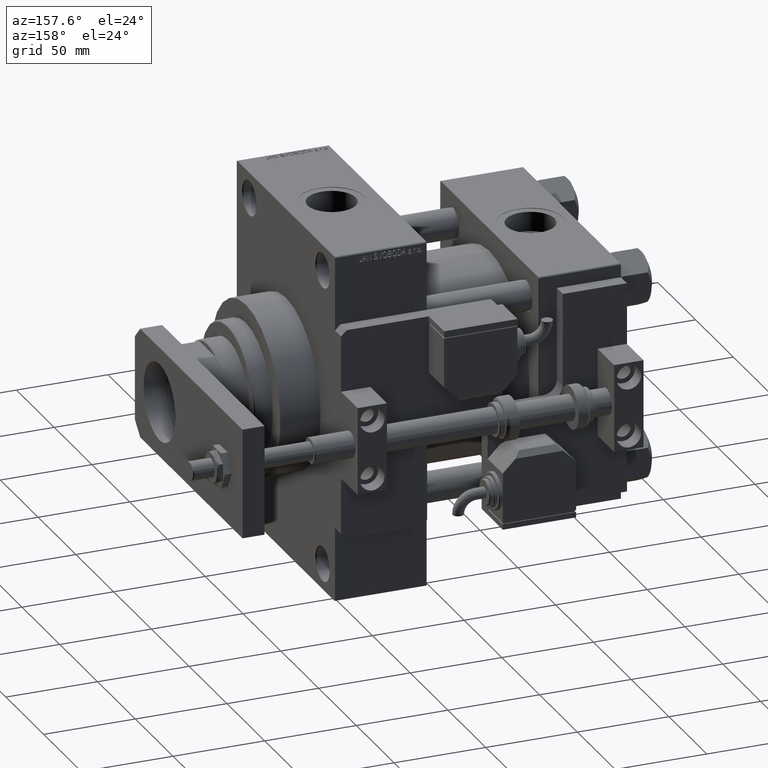
[diagram: clean part render]
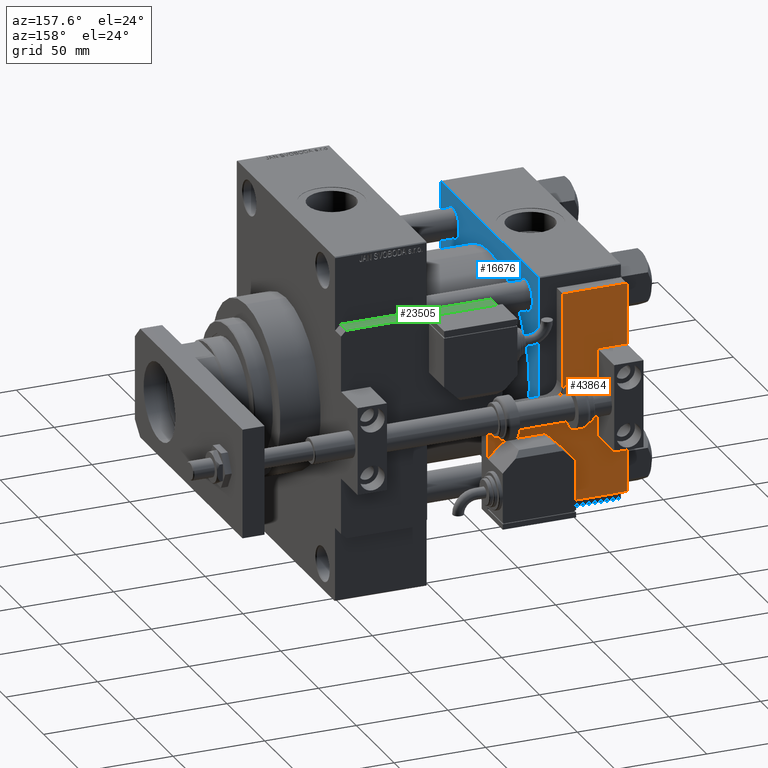
[diagram: same view with three faces highlighted in distinct colors, each labeled with its STEP entity id]
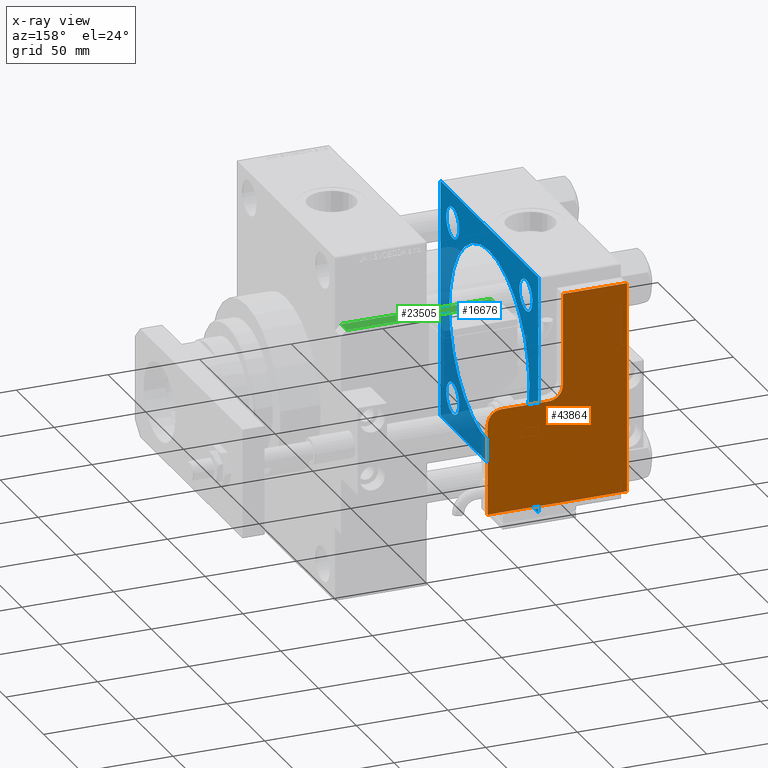
[diagram: x-ray of the same camera — body ghosted, the three highlighted faces saturated]
A machine part, auxiliary view with three faces highlighted in distinct colors.
The next image is the same camera in x-ray (body ghosted, the three faces saturated) — at least one of them is partly hidden behind the body in this view.
Their STEP definitions:

[orange] entity #43864 — the highlighted planar face has unit normal (0, 1, 0).
#50 = CARTESIAN_POINT ( 'NONE',  ( -34.99999999999997868, 57.00000000000009237, 8.000000000000000000 ) ) ;
#211 = DIRECTION ( 'NONE',  ( 2.434699615406041273E-16, -1.000000000000000000, 0.000000000000000000 ) ) ;
#1278 = FACE_OUTER_BOUND ( 'NONE', #4739, .T. ) ;
#1470 = EDGE_CURVE ( 'NONE', #4074, #8089, #20482, .T. ) ;
#2080 = PLANE ( 'NONE',  #2393 ) ;
#2393 = AXIS2_PLACEMENT_3D ( 'NONE', #22085, #5053, #17472 ) ;
#2793 = EDGE_CURVE ( 'NONE', #8494, #15554, #15912, .T. ) ;
#4074 = VERTEX_POINT ( 'NONE', #24729 ) ;
#4739 = EDGE_LOOP ( 'NONE', ( #21952, #33180, #37779, #35364, #12543, #35718, #17731, #25332 ) ) ;
#4872 = DIRECTION ( 'NONE',  ( 1.000000000000000000, 0.000000000000000000, 0.000000000000000000 ) ) ;
#5053 = DIRECTION ( 'NONE',  ( 0.000000000000000000, 0.000000000000000000, 1.000000000000000000 ) ) ;
#8069 = CARTESIAN_POINT ( 'NONE',  ( -76.00000000000005684, 57.00000000000008527, 8.000000000000000000 ) ) ;
#8089 = VERTEX_POINT ( 'NONE', #39453 ) ;
#8317 = CARTESIAN_POINT ( 'NONE',  ( 0.000000000000000000, 0.000000000000000000, 8.000000000000000000 ) ) ;
#8494 = VERTEX_POINT ( 'NONE', #35603 ) ;
#9310 = CARTESIAN_POINT ( 'NONE',  ( -68.50000000000005684, 57.00000000000008527, 8.000000000000000000 ) ) ;
#9888 = EDGE_CURVE ( 'NONE', #35508, #21602, #23882, .T. ) ;
#10003 = CARTESIAN_POINT ( 'NONE',  ( -76.00000000000004263, 0.000000000000000000, 8.000000000000000000 ) ) ;
#10797 = VECTOR ( 'NONE', #211, 1000.000000000000000 ) ;
#12145 = LINE ( 'NONE', #28628, #40667 ) ;
#12543 = ORIENTED_EDGE ( 'NONE', *, *, #27312, .T. ) ;
#12660 = CARTESIAN_POINT ( 'NONE',  ( -34.99999999999999289, 114.9999999999999716, 8.000000000000000000 ) ) ;
#15009 = CARTESIAN_POINT ( 'NONE',  ( 0.000000000000000000, 0.000000000000000000, 8.000000000000000000 ) ) ;
#15554 = VERTEX_POINT ( 'NONE', #12660 ) ;
#15912 = LINE ( 'NONE', #28340, #23796 ) ;
#17388 = EDGE_CURVE ( 'NONE', #8089, #39084, #47034, .T. ) ;
#17472 = DIRECTION ( 'NONE',  ( 1.000000000000000000, 0.000000000000000000, -0.000000000000000000 ) ) ;
#17731 = ORIENTED_EDGE ( 'NONE', *, *, #25837, .T. ) ;
#20471 = DIRECTION ( 'NONE',  ( 0.000000000000000000, 1.000000000000000000, 0.000000000000000000 ) ) ;
#20482 = LINE ( 'NONE', #8069, #10797 ) ;
#20600 = DIRECTION ( 'NONE',  ( -1.000000000000000000, -1.692413147294442765E-16, 0.000000000000000000 ) ) ;
#21602 = VERTEX_POINT ( 'NONE', #9310 ) ;
#21952 = ORIENTED_EDGE ( 'NONE', *, *, #9888, .T. ) ;
#22085 = CARTESIAN_POINT ( 'NONE',  ( 0.000000000000000000, 0.000000000000000000, 8.000000000000000000 ) ) ;
#23796 = VECTOR ( 'NONE', #27817, 1000.000000000000000 ) ;
#23882 = LINE ( 'NONE', #50, #36025 ) ;
#24729 = CARTESIAN_POINT ( 'NONE',  ( -76.00000000000005684, 49.50000000000008527, 8.000000000000000000 ) ) ;
#25332 = ORIENTED_EDGE ( 'NONE', *, *, #25698, .T. ) ;
#25409 = DIRECTION ( 'NONE',  ( 0.000000000000000000, 0.000000000000000000, 1.000000000000000000 ) ) ;
#25698 = EDGE_CURVE ( 'NONE', #48046, #35508, #31183, .T. ) ;
#25837 = EDGE_CURVE ( 'NONE', #15554, #48046, #12145, .T. ) ;
#26006 = AXIS2_PLACEMENT_3D ( 'NONE', #35190, #46542, #52468 ) ;
#26483 = DIRECTION ( 'NONE',  ( 1.000000000000000000, 0.000000000000000000, 0.000000000000000000 ) ) ;
#27312 = EDGE_CURVE ( 'NONE', #39084, #8494, #45342, .T. ) ;
#27817 = DIRECTION ( 'NONE',  ( -1.000000000000000000, -1.189524669241239460E-15, 0.000000000000000000 ) ) ;
#28340 = CARTESIAN_POINT ( 'NONE',  ( 0.000000000000000000, 115.0000000000000142, 8.000000000000000000 ) ) ;
#28628 = CARTESIAN_POINT ( 'NONE',  ( -34.99999999999999289, 114.9999999999999716, 8.000000000000000000 ) ) ;
#31183 = CIRCLE ( 'NONE', #26006, 7.500000000000000000 ) ;
#31962 = AXIS2_PLACEMENT_3D ( 'NONE', #34066, #25409, #4872 ) ;
#33180 = ORIENTED_EDGE ( 'NONE', *, *, #49761, .T. ) ;
#34066 = CARTESIAN_POINT ( 'NONE',  ( -68.50000000000005684, 49.50000000000008527, 8.000000000000000000 ) ) ;
#35190 = CARTESIAN_POINT ( 'NONE',  ( -42.49999999999997868, 64.50000000000008527, 8.000000000000000000 ) ) ;
#35364 = ORIENTED_EDGE ( 'NONE', *, *, #17388, .T. ) ;
#35508 = VERTEX_POINT ( 'NONE', #42621 ) ;
#35603 = CARTESIAN_POINT ( 'NONE',  ( 0.000000000000000000, 115.0000000000000142, 8.000000000000000000 ) ) ;
#35718 = ORIENTED_EDGE ( 'NONE', *, *, #2793, .T. ) ;
#36025 = VECTOR ( 'NONE', #20600, 1000.000000000000000 ) ;
#36384 = VECTOR ( 'NONE', #20471, 1000.000000000000000 ) ;
#37779 = ORIENTED_EDGE ( 'NONE', *, *, #1470, .T. ) ;
#39084 = VERTEX_POINT ( 'NONE', #15009 ) ;
#39453 = CARTESIAN_POINT ( 'NONE',  ( -76.00000000000004263, 0.000000000000000000, 8.000000000000000000 ) ) ;
#39801 = VECTOR ( 'NONE', #26483, 1000.000000000000000 ) ;
#40667 = VECTOR ( 'NONE', #45140, 1000.000000000000000 ) ;
#42094 = CARTESIAN_POINT ( 'NONE',  ( -34.99999999999997868, 64.50000000000008527, 8.000000000000000000 ) ) ;
#42621 = CARTESIAN_POINT ( 'NONE',  ( -42.49999999999997868, 57.00000000000009237, 8.000000000000000000 ) ) ;
#43864 = ADVANCED_FACE ( 'NONE', ( #1278 ), #2080, .T. ) ;
#44074 = CIRCLE ( 'NONE', #31962, 7.500000000000000000 ) ;
#45140 = DIRECTION ( 'NONE',  ( 2.392722035830083409E-16, -1.000000000000000000, 0.000000000000000000 ) ) ;
#45342 = LINE ( 'NONE', #8317, #36384 ) ;
#46542 = DIRECTION ( 'NONE',  ( -0.000000000000000000, -0.000000000000000000, -1.000000000000000000 ) ) ;
#47034 = LINE ( 'NONE', #10003, #39801 ) ;
#48046 = VERTEX_POINT ( 'NONE', #42094 ) ;
#49761 = EDGE_CURVE ( 'NONE', #21602, #4074, #44074, .T. ) ;
#52468 = DIRECTION ( 'NONE',  ( 1.000000000000000000, 0.000000000000000000, 0.000000000000000000 ) ) ;

[blue] entity #16676 — the highlighted planar face has unit normal (-1, 0, 0).
#111 = VECTOR ( 'NONE', #28608, 1000.000000000000000 ) ;
#209 = ORIENTED_EDGE ( 'NONE', *, *, #48913, .T. ) ;
#852 = DIRECTION ( 'NONE',  ( 1.000000000000000000, -0.000000000000000000, 0.000000000000000000 ) ) ;
#855 = CIRCLE ( 'NONE', #47479, 8.500000000000007105 ) ;
#1090 = DIRECTION ( 'NONE',  ( 0.000000000000000000, 0.000000000000000000, -1.000000000000000000 ) ) ;
#1127 = LINE ( 'NONE', #17597, #24176 ) ;
#1401 = DIRECTION ( 'NONE',  ( 0.000000000000000000, 0.000000000000000000, -1.000000000000000000 ) ) ;
#1463 = CARTESIAN_POINT ( 'NONE',  ( 45.00000000000000000, 48.44999999999999574, -39.94999999999990337 ) ) ;
#1513 = CARTESIAN_POINT ( 'NONE',  ( 45.00000000000000000, -48.44999999999998153, 48.45000000000000995 ) ) ;
#1920 = VERTEX_POINT ( 'NONE', #28001 ) ;
#2844 = CARTESIAN_POINT ( 'NONE',  ( 45.00000000000000000, -48.44999999999998153, 48.45000000000000995 ) ) ;
#2876 = FACE_BOUND ( 'NONE', #29256, .T. ) ;
#2981 = CARTESIAN_POINT ( 'NONE',  ( 45.00000000000000000, -48.44999999999998153, -39.95000000000000284 ) ) ;
#3965 = AXIS2_PLACEMENT_3D ( 'NONE', #48822, #12305, #52623 ) ;
#4408 = CIRCLE ( 'NONE', #12144, 8.500000000000007105 ) ;
#4998 = ORIENTED_EDGE ( 'NONE', *, *, #38057, .T. ) ;
#5045 = VECTOR ( 'NONE', #30602, 1000.000000000000114 ) ;
#5112 = ORIENTED_EDGE ( 'NONE', *, *, #15256, .F. ) ;
#5145 = CARTESIAN_POINT ( 'NONE',  ( 45.00000000000000000, -48.44999999999998153, 39.95000000000000284 ) ) ;
#5154 = EDGE_CURVE ( 'NONE', #31963, #13013, #13301, .T. ) ;
#5343 = AXIS2_PLACEMENT_3D ( 'NONE', #34824, #26427, #51315 ) ;
#5480 = CARTESIAN_POINT ( 'NONE',  ( 45.00000000000000000, 65.00000000000000000, -64.49999999999995737 ) ) ;
#5679 = CARTESIAN_POINT ( 'NONE',  ( 45.00000000000000000, 64.49999999999997158, 65.00000000000001421 ) ) ;
#5779 = DIRECTION ( 'NONE',  ( -1.000000000000000000, 0.000000000000000000, -0.000000000000000000 ) ) ;
#6065 = ORIENTED_EDGE ( 'NONE', *, *, #52636, .F. ) ;
#6571 = AXIS2_PLACEMENT_3D ( 'NONE', #27474, #18593, #43971 ) ;
#6646 = CARTESIAN_POINT ( 'NONE',  ( 45.00000000000000000, -2.602085213965210642E-15, 53.00000000000000711 ) ) ;
#6765 = ORIENTED_EDGE ( 'NONE', *, *, #5154, .T. ) ;
#6931 = FACE_BOUND ( 'NONE', #18635, .T. ) ;
#7087 = CIRCLE ( 'NONE', #25201, 53.00000000000000711 ) ;
#7138 = EDGE_CURVE ( 'NONE', #27200, #1920, #50825, .T. ) ;
#7324 = VERTEX_POINT ( 'NONE', #33175 ) ;
#7448 = AXIS2_PLACEMENT_3D ( 'NONE', #41178, #49029, #32009 ) ;
#8501 = ORIENTED_EDGE ( 'NONE', *, *, #41166, .T. ) ;
#8510 = FACE_OUTER_BOUND ( 'NONE', #14523, .T. ) ;
#9049 = AXIS2_PLACEMENT_3D ( 'NONE', #18997, #5779, #35499 ) ;
#9462 = ORIENTED_EDGE ( 'NONE', *, *, #43383, .F. ) ;
#11408 = LINE ( 'NONE', #27620, #31672 ) ;
#11776 = CARTESIAN_POINT ( 'NONE',  ( 45.00000000000000000, -64.49999999999994316, -65.00000000000001421 ) ) ;
#11880 = VERTEX_POINT ( 'NONE', #38611 ) ;
#12144 = AXIS2_PLACEMENT_3D ( 'NONE', #1513, #26096, #42596 ) ;
#12305 = DIRECTION ( 'NONE',  ( -1.000000000000000000, 0.000000000000000000, -0.000000000000000000 ) ) ;
#12405 = CARTESIAN_POINT ( 'NONE',  ( 45.00000000000000000, 3.888542821515760888E-15, -53.00000000000000711 ) ) ;
#12872 = VERTEX_POINT ( 'NONE', #39336 ) ;
#13013 = VERTEX_POINT ( 'NONE', #25485 ) ;
#13301 = LINE ( 'NONE', #45745, #51487 ) ;
#13711 = DIRECTION ( 'NONE',  ( -1.000000000000000000, 0.000000000000000000, -0.000000000000000000 ) ) ;
#13943 = CIRCLE ( 'NONE', #5343, 8.500000000000090594 ) ;
#14523 = EDGE_LOOP ( 'NONE', ( #9462, #39777, #5112, #44078, #48794, #6765, #209, #8501 ) ) ;
#14641 = ORIENTED_EDGE ( 'NONE', *, *, #18583, .T. ) ;
#15256 = EDGE_CURVE ( 'NONE', #27200, #11880, #1127, .T. ) ;
#16676 = ADVANCED_FACE ( 'NONE', ( #6931, #39907, #2876, #19358, #52349, #8510 ), #29301, .F. ) ;
#17597 = CARTESIAN_POINT ( 'NONE',  ( 45.00000000000000000, 65.00000000000000000, 65.00000000000001421 ) ) ;
#18583 = EDGE_CURVE ( 'NONE', #40682, #12872, #13943, .T. ) ;
#18593 = DIRECTION ( 'NONE',  ( 1.000000000000000000, -0.000000000000000000, 0.000000000000000000 ) ) ;
#18635 = EDGE_LOOP ( 'NONE', ( #23229, #40729 ) ) ;
#18997 = CARTESIAN_POINT ( 'NONE',  ( 45.00000000000000000, -48.44999999999998153, -48.45000000000000995 ) ) ;
#19211 = CARTESIAN_POINT ( 'NONE',  ( 45.00000000000000000, 65.00000000000000000, -64.99999999999998579 ) ) ;
#19358 = FACE_BOUND ( 'NONE', #40283, .T. ) ;
#19441 = ORIENTED_EDGE ( 'NONE', *, *, #50639, .T. ) ;
#19631 = EDGE_LOOP ( 'NONE', ( #36987, #50881 ) ) ;
#19737 = DIRECTION ( 'NONE',  ( 0.000000000000000000, -1.000000000000000000, -2.135044278125300850E-16 ) ) ;
#20888 = DIRECTION ( 'NONE',  ( -0.000000000000000000, -0.7071067811865672237, -0.7071067811865279218 ) ) ;
#21243 = CIRCLE ( 'NONE', #3965, 8.500000000000090594 ) ;
#22040 = CIRCLE ( 'NONE', #27185, 8.500000000000007105 ) ;
#22508 = LINE ( 'NONE', #5480, #5045 ) ;
#22600 = DIRECTION ( 'NONE',  ( 0.000000000000000000, 0.000000000000000000, 1.000000000000000000 ) ) ;
#23229 = ORIENTED_EDGE ( 'NONE', *, *, #49273, .T. ) ;
#23840 = CIRCLE ( 'NONE', #7448, 8.500000000000090594 ) ;
#24176 = VECTOR ( 'NONE', #1401, 1000.000000000000000 ) ;
#24291 = VERTEX_POINT ( 'NONE', #12405 ) ;
#25003 = VECTOR ( 'NONE', #1090, 1000.000000000000000 ) ;
#25093 = ORIENTED_EDGE ( 'NONE', *, *, #36821, .F. ) ;
#25201 = AXIS2_PLACEMENT_3D ( 'NONE', #50329, #852, #33289 ) ;
#25485 = CARTESIAN_POINT ( 'NONE',  ( 45.00000000000000000, -65.00000000000000000, 64.49999999999998579 ) ) ;
#25668 = LINE ( 'NONE', #42166, #25003 ) ;
#26067 = VERTEX_POINT ( 'NONE', #26735 ) ;
#26096 = DIRECTION ( 'NONE',  ( -1.000000000000000000, 0.000000000000000000, -0.000000000000000000 ) ) ;
#26427 = DIRECTION ( 'NONE',  ( -1.000000000000000000, 0.000000000000000000, -0.000000000000000000 ) ) ;
#26735 = CARTESIAN_POINT ( 'NONE',  ( 45.00000000000000000, -48.44999999999998153, 56.95000000000001705 ) ) ;
#27185 = AXIS2_PLACEMENT_3D ( 'NONE', #2844, #47449, #22600 ) ;
#27200 = VERTEX_POINT ( 'NONE', #27263 ) ;
#27263 = CARTESIAN_POINT ( 'NONE',  ( 45.00000000000000000, 65.00000000000000000, 64.49999999999998579 ) ) ;
#27284 = VERTEX_POINT ( 'NONE', #36964 ) ;
#27474 = CARTESIAN_POINT ( 'NONE',  ( 45.00000000000000000, -2.602085213965210642E-15, 0.000000000000000000 ) ) ;
#27620 = CARTESIAN_POINT ( 'NONE',  ( 45.00000000000000000, -64.49999999999994316, -65.00000000000001421 ) ) ;
#28001 = CARTESIAN_POINT ( 'NONE',  ( 45.00000000000000000, 64.49999999999997158, 65.00000000000001421 ) ) ;
#28509 = CARTESIAN_POINT ( 'NONE',  ( 45.00000000000000000, 0.000000000000000000, 0.000000000000000000 ) ) ;
#28608 = DIRECTION ( 'NONE',  ( 0.000000000000000000, -1.000000000000000000, -2.135044278125300850E-16 ) ) ;
#29256 = EDGE_LOOP ( 'NONE', ( #4998, #19441 ) ) ;
#29301 = PLANE ( 'NONE',  #37160 ) ;
#30000 = AXIS2_PLACEMENT_3D ( 'NONE', #38303, #42900, #39110 ) ;
#30009 = VERTEX_POINT ( 'NONE', #6646 ) ;
#30428 = CARTESIAN_POINT ( 'NONE',  ( 45.00000000000000000, 64.49999999999997158, -64.99999999999998579 ) ) ;
#30602 = DIRECTION ( 'NONE',  ( -0.000000000000000000, 0.7071067811865474617, 0.7071067811865474617 ) ) ;
#30736 = DIRECTION ( 'NONE',  ( 0.000000000000000000, 0.000000000000000000, 1.000000000000000000 ) ) ;
#31672 = VECTOR ( 'NONE', #44123, 1000.000000000000114 ) ;
#31963 = VERTEX_POINT ( 'NONE', #46809 ) ;
#32009 = DIRECTION ( 'NONE',  ( 0.000000000000000000, 0.000000000000000000, 1.000000000000000000 ) ) ;
#32360 = CIRCLE ( 'NONE', #9049, 8.500000000000007105 ) ;
#32682 = LINE ( 'NONE', #48910, #111 ) ;
#33175 = CARTESIAN_POINT ( 'NONE',  ( 45.00000000000000000, -48.44999999999998153, -56.95000000000001705 ) ) ;
#33289 = DIRECTION ( 'NONE',  ( 0.000000000000000000, 0.000000000000000000, 1.000000000000000000 ) ) ;
#34544 = CARTESIAN_POINT ( 'NONE',  ( 45.00000000000000000, -48.44999999999998153, -48.45000000000000995 ) ) ;
#34698 = ORIENTED_EDGE ( 'NONE', *, *, #39735, .T. ) ;
#34824 = CARTESIAN_POINT ( 'NONE',  ( 45.00000000000000000, 48.44999999999999574, 48.44999999999999574 ) ) ;
#35499 = DIRECTION ( 'NONE',  ( 0.000000000000000000, 0.000000000000000000, 1.000000000000000000 ) ) ;
#36318 = VERTEX_POINT ( 'NONE', #5145 ) ;
#36821 = EDGE_CURVE ( 'NONE', #24291, #30009, #48876, .T. ) ;
#36964 = CARTESIAN_POINT ( 'NONE',  ( 45.00000000000000000, 48.44999999999999574, -56.95000000000008100 ) ) ;
#36987 = ORIENTED_EDGE ( 'NONE', *, *, #39540, .T. ) ;
#37160 = AXIS2_PLACEMENT_3D ( 'NONE', #28509, #44748, #49072 ) ;
#38057 = EDGE_CURVE ( 'NONE', #36318, #26067, #22040, .T. ) ;
#38301 = VERTEX_POINT ( 'NONE', #1463 ) ;
#38303 = CARTESIAN_POINT ( 'NONE',  ( 45.00000000000000000, 48.44999999999999574, -48.44999999999999574 ) ) ;
#38414 = EDGE_CURVE ( 'NONE', #41439, #7324, #32360, .T. ) ;
#38465 = VERTEX_POINT ( 'NONE', #52776 ) ;
#38611 = CARTESIAN_POINT ( 'NONE',  ( 45.00000000000000000, 65.00000000000000000, -64.49999999999995737 ) ) ;
#38920 = DIRECTION ( 'NONE',  ( 0.000000000000000000, -0.7071067811865474617, 0.7071067811865474617 ) ) ;
#39110 = DIRECTION ( 'NONE',  ( 0.000000000000000000, 0.000000000000000000, 1.000000000000000000 ) ) ;
#39336 = CARTESIAN_POINT ( 'NONE',  ( 45.00000000000000000, 48.44999999999999574, 39.94999999999990337 ) ) ;
#39540 = EDGE_CURVE ( 'NONE', #27284, #38301, #21243, .T. ) ;
#39735 = EDGE_CURVE ( 'NONE', #12872, #40682, #23840, .T. ) ;
#39749 = LINE ( 'NONE', #19211, #50743 ) ;
#39777 = ORIENTED_EDGE ( 'NONE', *, *, #45225, .T. ) ;
#39907 = FACE_BOUND ( 'NONE', #19631, .T. ) ;
#40283 = EDGE_LOOP ( 'NONE', ( #34698, #14641 ) ) ;
#40682 = VERTEX_POINT ( 'NONE', #46721 ) ;
#40729 = ORIENTED_EDGE ( 'NONE', *, *, #38414, .T. ) ;
#41166 = EDGE_CURVE ( 'NONE', #38465, #46144, #11408, .T. ) ;
#41178 = CARTESIAN_POINT ( 'NONE',  ( 45.00000000000000000, 48.44999999999999574, 48.44999999999999574 ) ) ;
#41184 = VECTOR ( 'NONE', #38920, 1000.000000000000114 ) ;
#41439 = VERTEX_POINT ( 'NONE', #2981 ) ;
#42126 = CIRCLE ( 'NONE', #30000, 8.500000000000090594 ) ;
#42166 = CARTESIAN_POINT ( 'NONE',  ( 45.00000000000000000, -65.00000000000000000, 64.99999999999998579 ) ) ;
#42596 = DIRECTION ( 'NONE',  ( 0.000000000000000000, 0.000000000000000000, 1.000000000000000000 ) ) ;
#42900 = DIRECTION ( 'NONE',  ( -1.000000000000000000, 0.000000000000000000, -0.000000000000000000 ) ) ;
#43383 = EDGE_CURVE ( 'NONE', #53475, #46144, #39749, .T. ) ;
#43870 = EDGE_CURVE ( 'NONE', #38301, #27284, #42126, .T. ) ;
#43971 = DIRECTION ( 'NONE',  ( 0.000000000000000000, 0.000000000000000000, 1.000000000000000000 ) ) ;
#44078 = ORIENTED_EDGE ( 'NONE', *, *, #7138, .T. ) ;
#44123 = DIRECTION ( 'NONE',  ( 0.000000000000000000, 0.7071067811865474617, -0.7071067811865474617 ) ) ;
#44748 = DIRECTION ( 'NONE',  ( -1.000000000000000000, 0.000000000000000000, -0.000000000000000000 ) ) ;
#45225 = EDGE_CURVE ( 'NONE', #53475, #11880, #22508, .T. ) ;
#45745 = CARTESIAN_POINT ( 'NONE',  ( 45.00000000000000000, -65.00000000000000000, 64.49999999999998579 ) ) ;
#46144 = VERTEX_POINT ( 'NONE', #11776 ) ;
#46721 = CARTESIAN_POINT ( 'NONE',  ( 45.00000000000000000, 48.44999999999999574, 56.95000000000008100 ) ) ;
#46809 = CARTESIAN_POINT ( 'NONE',  ( 45.00000000000000000, -64.49999999999997158, 64.99999999999998579 ) ) ;
#47449 = DIRECTION ( 'NONE',  ( -1.000000000000000000, 0.000000000000000000, -0.000000000000000000 ) ) ;
#47479 = AXIS2_PLACEMENT_3D ( 'NONE', #34544, #13711, #30736 ) ;
#48794 = ORIENTED_EDGE ( 'NONE', *, *, #51379, .T. ) ;
#48822 = CARTESIAN_POINT ( 'NONE',  ( 45.00000000000000000, 48.44999999999999574, -48.44999999999999574 ) ) ;
#48876 = CIRCLE ( 'NONE', #6571, 53.00000000000000711 ) ;
#48910 = CARTESIAN_POINT ( 'NONE',  ( 45.00000000000000000, 65.00000000000000000, 65.00000000000001421 ) ) ;
#48913 = EDGE_CURVE ( 'NONE', #13013, #38465, #25668, .T. ) ;
#49029 = DIRECTION ( 'NONE',  ( -1.000000000000000000, 0.000000000000000000, -0.000000000000000000 ) ) ;
#49072 = DIRECTION ( 'NONE',  ( -0.000000000000000000, 0.000000000000000000, 1.000000000000000000 ) ) ;
#49273 = EDGE_CURVE ( 'NONE', #7324, #41439, #855, .T. ) ;
#49579 = EDGE_LOOP ( 'NONE', ( #6065, #25093 ) ) ;
#50329 = CARTESIAN_POINT ( 'NONE',  ( 45.00000000000000000, -2.602085213965210642E-15, 0.000000000000000000 ) ) ;
#50639 = EDGE_CURVE ( 'NONE', #26067, #36318, #4408, .T. ) ;
#50743 = VECTOR ( 'NONE', #19737, 1000.000000000000000 ) ;
#50825 = LINE ( 'NONE', #5679, #41184 ) ;
#50881 = ORIENTED_EDGE ( 'NONE', *, *, #43870, .T. ) ;
#51315 = DIRECTION ( 'NONE',  ( 0.000000000000000000, 0.000000000000000000, 1.000000000000000000 ) ) ;
#51379 = EDGE_CURVE ( 'NONE', #1920, #31963, #32682, .T. ) ;
#51487 = VECTOR ( 'NONE', #20888, 1000.000000000000000 ) ;
#52349 = FACE_BOUND ( 'NONE', #49579, .T. ) ;
#52623 = DIRECTION ( 'NONE',  ( 0.000000000000000000, 0.000000000000000000, 1.000000000000000000 ) ) ;
#52636 = EDGE_CURVE ( 'NONE', #30009, #24291, #7087, .T. ) ;
#52776 = CARTESIAN_POINT ( 'NONE',  ( 45.00000000000000000, -65.00000000000000000, -64.49999999999995737 ) ) ;
#53475 = VERTEX_POINT ( 'NONE', #30428 ) ;

[green] entity #23505 — the highlighted planar face has unit normal (-0, -0, -1).
#107 = FACE_OUTER_BOUND ( 'NONE', #3963, .T. ) ;
#927 = CARTESIAN_POINT ( 'NONE',  ( 0.000000000000000000, 88.00000000000000000, 8.000000000000000000 ) ) ;
#1216 = DIRECTION ( 'NONE',  ( 0.000000000000000000, -1.000000000000000000, 0.000000000000000000 ) ) ;
#3919 = CARTESIAN_POINT ( 'NONE',  ( 0.000000000000000000, 88.00000000000000000, 8.000000000000000000 ) ) ;
#3963 = EDGE_LOOP ( 'NONE', ( #15164, #49423, #43420, #36783 ) ) ;
#5346 = VECTOR ( 'NONE', #24841, 1000.000000000000000 ) ;
#5692 = VERTEX_POINT ( 'NONE', #31603 ) ;
#6221 = EDGE_CURVE ( 'NONE', #11183, #48112, #32468, .T. ) ;
#7592 = VECTOR ( 'NONE', #43681, 1000.000000000000000 ) ;
#7953 = CARTESIAN_POINT ( 'NONE',  ( 0.000000000000000000, 3.000000000000002665, 8.000000000000000000 ) ) ;
#11183 = VERTEX_POINT ( 'NONE', #30885 ) ;
#12252 = VECTOR ( 'NONE', #1216, 1000.000000000000000 ) ;
#15164 = ORIENTED_EDGE ( 'NONE', *, *, #25264, .F. ) ;
#16186 = CARTESIAN_POINT ( 'NONE',  ( 0.000000000000000000, 3.000000000000002665, 8.000000000000000000 ) ) ;
#16589 = PLANE ( 'NONE',  #38088 ) ;
#16973 = VECTOR ( 'NONE', #23833, 1000.000000000000000 ) ;
#19247 = CARTESIAN_POINT ( 'NONE',  ( 0.000000000000000000, 85.00000000000001421, 8.000000000000000000 ) ) ;
#20392 = DIRECTION ( 'NONE',  ( 1.000000000000000000, 0.000000000000000000, -0.000000000000000000 ) ) ;
#21056 = LINE ( 'NONE', #16186, #5346 ) ;
#22890 = CARTESIAN_POINT ( 'NONE',  ( 0.000000000000000000, 85.00000000000001421, 0.000000000000000000 ) ) ;
#23406 = LINE ( 'NONE', #44473, #7592 ) ;
#23505 = ADVANCED_FACE ( 'NONE', ( #107 ), #16589, .F. ) ;
#23833 = DIRECTION ( 'NONE',  ( 0.000000000000000000, 0.000000000000000000, -1.000000000000000000 ) ) ;
#24841 = DIRECTION ( 'NONE',  ( 0.000000000000000000, 0.000000000000000000, 1.000000000000000000 ) ) ;
#25264 = EDGE_CURVE ( 'NONE', #11183, #47206, #42017, .T. ) ;
#30885 = CARTESIAN_POINT ( 'NONE',  ( 0.000000000000000000, 85.00000000000001421, 8.000000000000000000 ) ) ;
#31603 = CARTESIAN_POINT ( 'NONE',  ( 0.000000000000000000, 3.000000000000002665, 0.000000000000000000 ) ) ;
#32468 = LINE ( 'NONE', #19247, #16973 ) ;
#36783 = ORIENTED_EDGE ( 'NONE', *, *, #52184, .T. ) ;
#36883 = DIRECTION ( 'NONE',  ( -0.000000000000000000, 0.000000000000000000, -1.000000000000000000 ) ) ;
#38088 = AXIS2_PLACEMENT_3D ( 'NONE', #3919, #20392, #36883 ) ;
#42017 = LINE ( 'NONE', #927, #12252 ) ;
#43420 = ORIENTED_EDGE ( 'NONE', *, *, #43973, .T. ) ;
#43681 = DIRECTION ( 'NONE',  ( 0.000000000000000000, -1.000000000000000000, 0.000000000000000000 ) ) ;
#43973 = EDGE_CURVE ( 'NONE', #48112, #5692, #23406, .T. ) ;
#44473 = CARTESIAN_POINT ( 'NONE',  ( 0.000000000000000000, 88.00000000000000000, 0.000000000000000000 ) ) ;
#47206 = VERTEX_POINT ( 'NONE', #7953 ) ;
#48112 = VERTEX_POINT ( 'NONE', #22890 ) ;
#49423 = ORIENTED_EDGE ( 'NONE', *, *, #6221, .T. ) ;
#52184 = EDGE_CURVE ( 'NONE', #5692, #47206, #21056, .T. ) ;